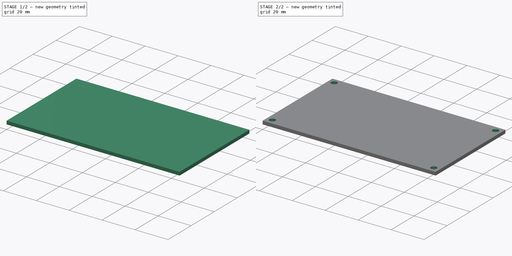
[diagram: build sequence overview — one tinted view per stage of 2, left to right]
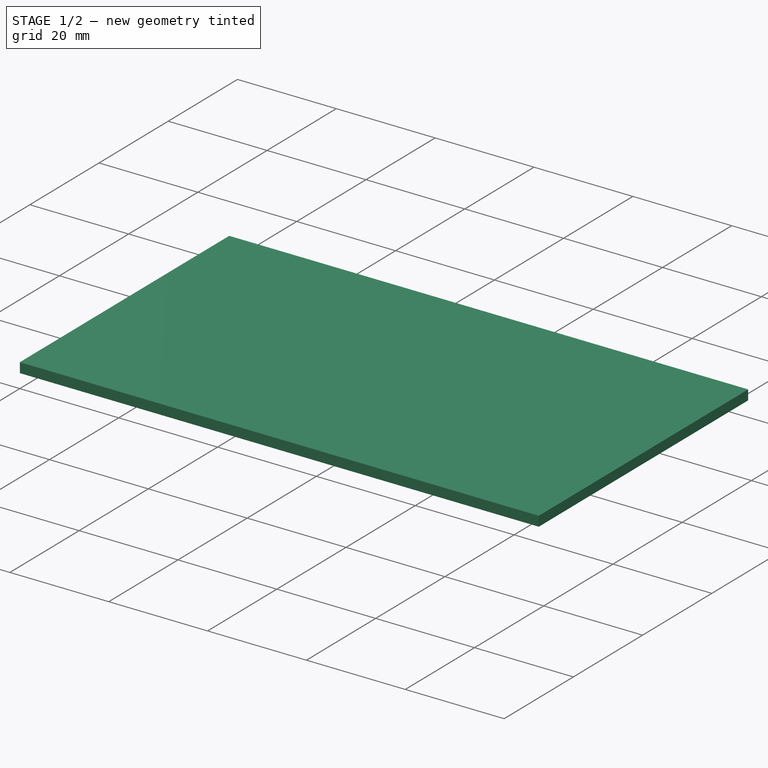
[diagram: stage 1 of 2 — iso view after this stage's code; geometry added in this stage tinted green]
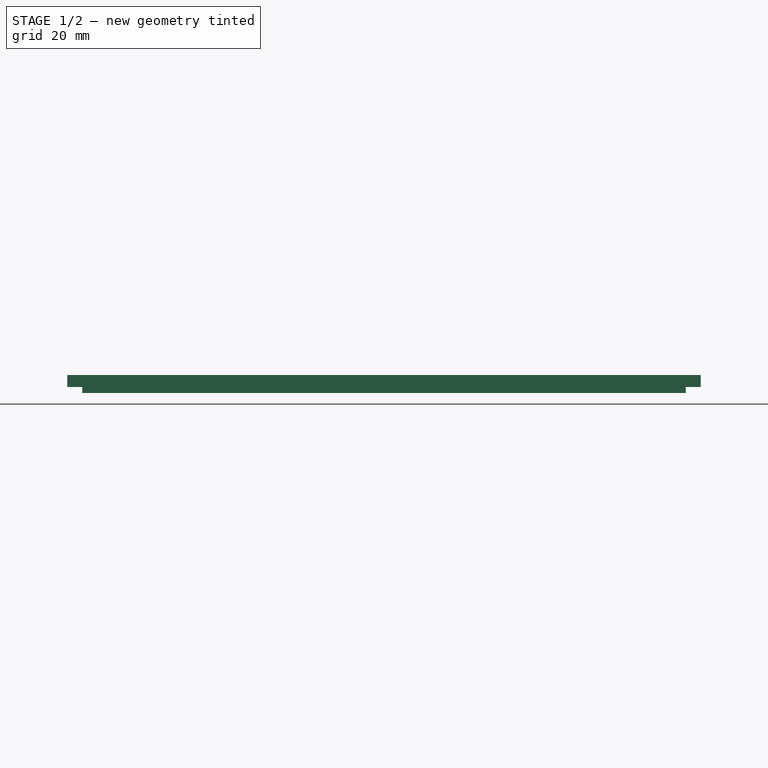
[diagram: stage 1 of 2 — front view after this stage's code; geometry added in this stage tinted green]
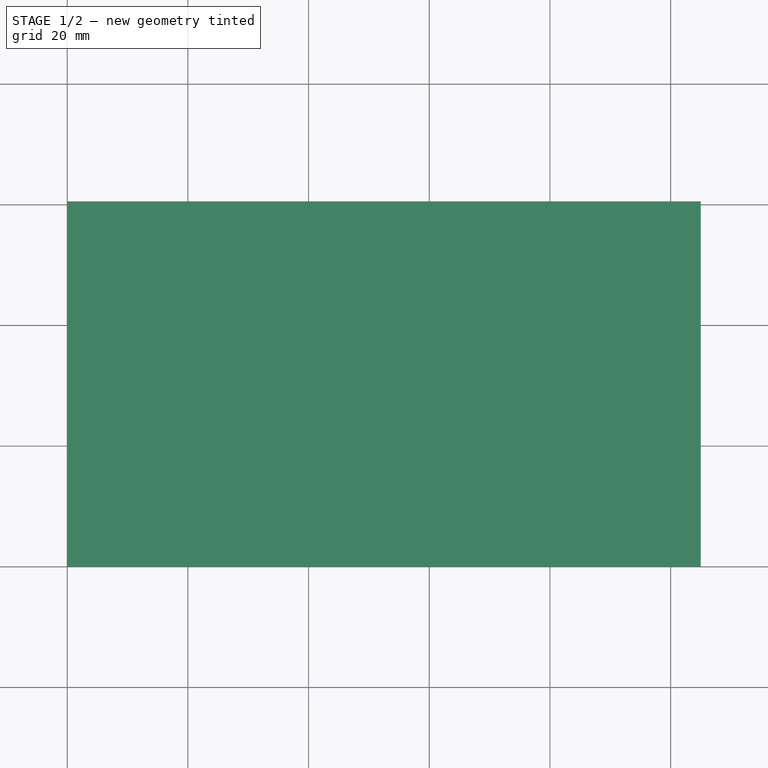
[diagram: stage 1 of 2 — top view after this stage's code; geometry added in this stage tinted green]
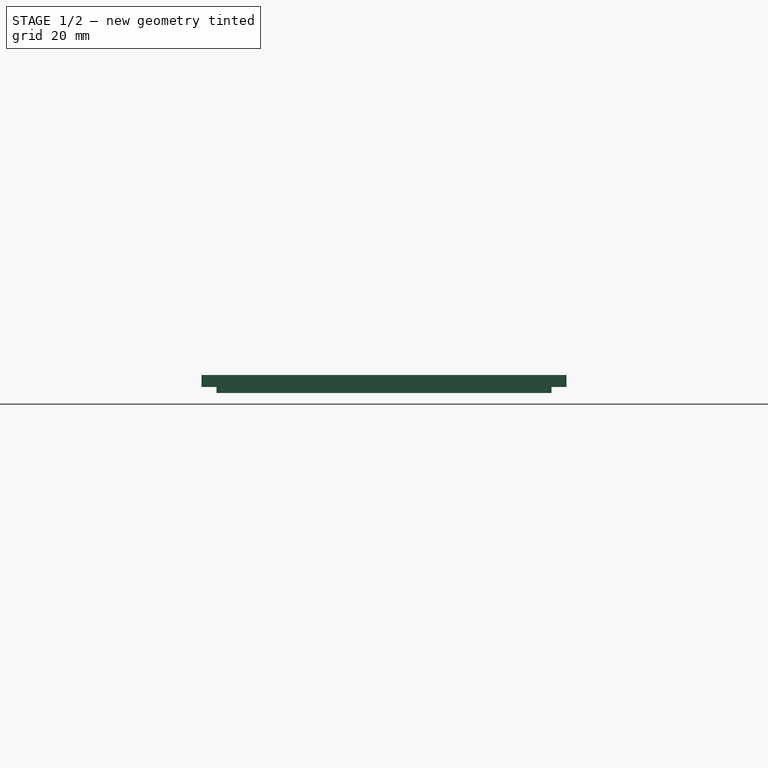
[diagram: stage 1 of 2 — right view after this stage's code; geometry added in this stage tinted green]
FCSTD DOCUMENT
Label: levelingglass_case_prototype_lid
License: CC-BY 3.0
LicenseURL: http://creativecommons.org/licenses/by/3.0/
objects: Sketcher::SketchObject×4, PartDesign::Pad×2, PartDesign::Pocket×2
note: 12 computed .brp shape members not serialized (recipe doc carries the construction recipe); baked Part::Feature solids carry a one-line shape summary decoded from their .brp

FEATURE [Sketcher::SketchObject] Sketch
  sketch-geometry (4):
    g0: LineSegment StartX=0 StartY=60.5 StartZ=0 EndX=105 EndY=60.5 EndZ=0
    g1: LineSegment StartX=105 StartY=60.5 StartZ=0 EndX=105 EndY=0 EndZ=0
    g2: LineSegment StartX=105 StartY=0 StartZ=0 EndX=0 EndY=0 EndZ=0
    g3: LineSegment StartX=0 StartY=0 StartZ=0 EndX=0 EndY=60.5 EndZ=0
  constraints (11):
    c: Coincident(g0,g1)
    c: Coincident(g1,g2)
    c: Coincident(g2,g3)
    c: Coincident(g3,g0)
    c: Horizontal(g0)
    c: Horizontal(g2)
    c: Vertical(g1)
    c: Vertical(g3)
    c: DistanceX(g0) = 105
    c: DistanceY(g3) = 60.5
    c: Coincident(g2,g-1)
FEATURE [PartDesign::Pad] Pad  label="Lid Top"
  Length = 2
  Length2 = 100
  Sketch = -> Sketch
  Type = 0
FEATURE [Sketcher::SketchObject] Sketch001
  ExternalGeometry = -> [Pad]
  Placement = pos=(0,0,0) rot=(1,0,0;3.14159rad)
  Support = -> Pad [Face5]
  sketch-geometry (4):
    g0: LineSegment StartX=2.5 StartY=-2.5 StartZ=0 EndX=102.5 EndY=-2.5 EndZ=0
    g1: LineSegment StartX=102.5 StartY=-2.5 StartZ=0 EndX=102.5 EndY=-58 EndZ=0
    g2: LineSegment StartX=102.5 StartY=-58 StartZ=0 EndX=2.5 EndY=-58 EndZ=0
    g3: LineSegment StartX=2.5 StartY=-58 StartZ=0 EndX=2.5 EndY=-2.5 EndZ=0
  constraints (12):
    c: Coincident(g0,g1)
    c: Coincident(g1,g2)
    c: Coincident(g2,g3)
    c: Coincident(g3,g0)
    c: Horizontal(g0)
    c: Horizontal(g2)
    c: Vertical(g1)
    c: Vertical(g3)
    c: DistanceY(g-1,g0) = -2.5
    c: DistanceX(g-2,g0) = 2.5
    c: Distance(g1,g-4) = 2.5
    c: Distance(g1,g-3) = 2.5
FEATURE [PartDesign::Pad] Pad001  label="Lid Bottom"
  Length = 1
  Length2 = 100
  Sketch = -> Sketch001
  Type = 0
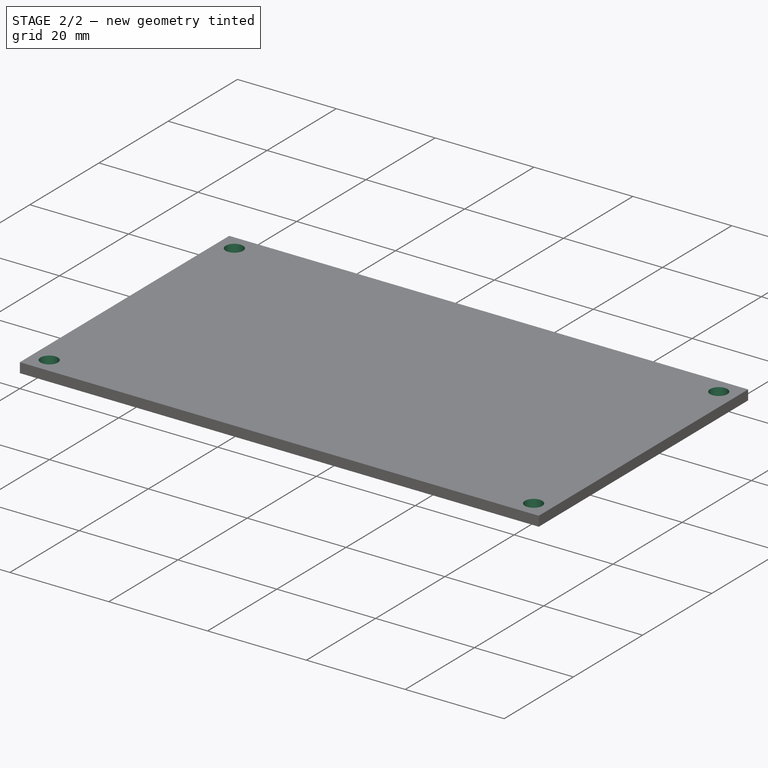
[diagram: stage 2 of 2 — iso view after this stage's code; geometry added in this stage tinted green]
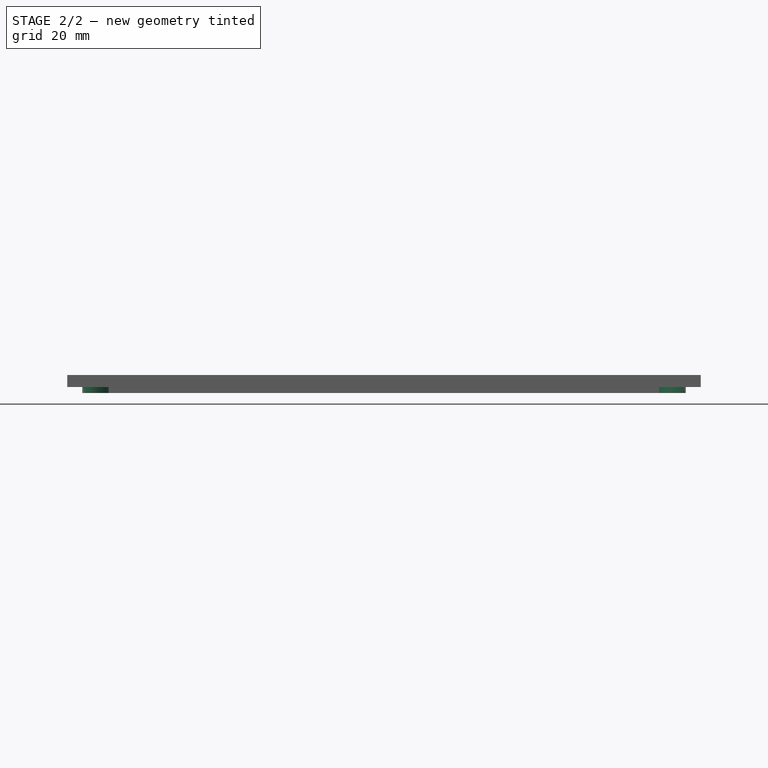
[diagram: stage 2 of 2 — front view after this stage's code; geometry added in this stage tinted green]
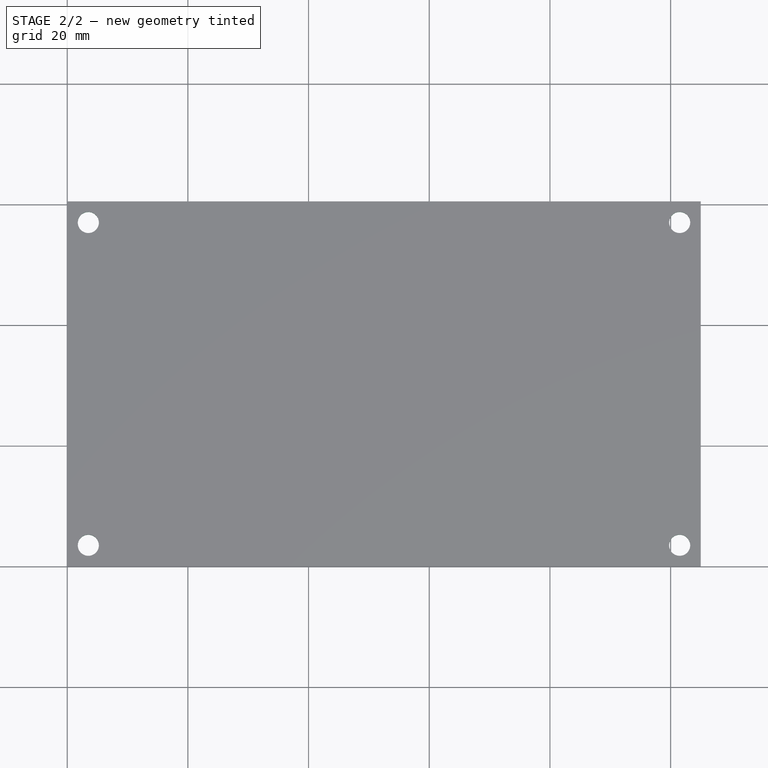
[diagram: stage 2 of 2 — top view after this stage's code; geometry added in this stage tinted green]
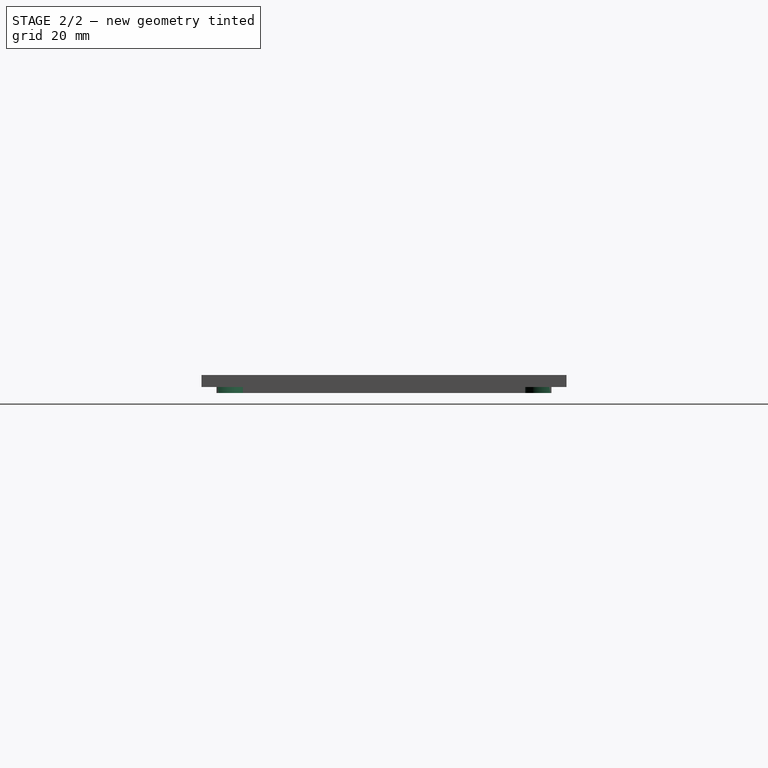
[diagram: stage 2 of 2 — right view after this stage's code; geometry added in this stage tinted green]
FEATURE [Sketcher::SketchObject] Sketch002
  ExternalGeometry = -> [Pad001]
  Placement = pos=(0,0,-1) rot=(1,0,0;3.14159rad)
  Support = -> Pad001 [Face11]
  sketch-geometry (12):
    g0: LineSegment [constr] StartX=2 StartY=-2 StartZ=0 EndX=103 EndY=-2 EndZ=0
    g1: LineSegment [constr] StartX=103 StartY=-2 StartZ=0 EndX=103 EndY=-58.5 EndZ=0
    g2: LineSegment [constr] StartX=103 StartY=-58.5 StartZ=0 EndX=2 EndY=-58.5 EndZ=0
    g3: LineSegment [constr] StartX=2 StartY=-58.5 StartZ=0 EndX=2 EndY=-2 EndZ=0
    g4: Circle [constr] CenterX=101.5 CenterY=-3.5 CenterZ=0 NormalX=0 NormalY=0 NormalZ=1 Radius=1.5
    g5: Circle [constr] CenterX=3.5 CenterY=-57 CenterZ=0 NormalX=0 NormalY=0 NormalZ=1 Radius=1.5
    g6: Circle [constr] CenterX=101.5 CenterY=-57 CenterZ=0 NormalX=0 NormalY=0 NormalZ=1 Radius=1.5
    g7: Circle [constr] CenterX=3.5 CenterY=-3.5 CenterZ=0 NormalX=0 NormalY=0 NormalZ=1 Radius=1.5
    g8: Circle CenterX=3.5 CenterY=-3.5 CenterZ=0 NormalX=0 NormalY=0 NormalZ=1 Radius=3.5
    g9: Circle CenterX=3.5 CenterY=-57 CenterZ=0 NormalX=0 NormalY=0 NormalZ=1 Radius=3.5
    g10: Circle CenterX=101.5 CenterY=-3.5 CenterZ=0 NormalX=0 NormalY=0 NormalZ=1 Radius=3.5
    g11: Circle CenterX=101.5 CenterY=-57 CenterZ=0 NormalX=0 NormalY=0 NormalZ=1 Radius=3.5
  constraints (32):
    c: Coincident(g0,g1)
    c: Coincident(g1,g2)
    c: Coincident(g2,g3)
    c: Coincident(g3,g0)
    c: Horizontal(g0)
    c: Horizontal(g2)
    c: Vertical(g1)
    c: Vertical(g3)
    c: DistanceX(g-2,g0) = 2
    c: DistanceY(g-1,g0) = -2
    c: Distance(g1,g-4) = 2
    c: Distance(g1,g-3) = 2
    c: Equal(g7,g4)
    c: Equal(g4,g5)
    c: Equal(g5,g6)
    c: Radius(g7) = 1.5
    c: Tangent(g3,g7)
    c: Tangent(g7,g0)
    c: Equal(g11,g10)
    c: Equal(g10,g9)
    c: Equal(g9,g8)
    c: Radius(g8) = 3.5
    c: Coincident(g8,g7)
    c: Coincident(g10,g4)
    c: Coincident(g9,g5)
    c: Tangent(g6,g2)
    c: Tangent(g6,g1)
    c: Coincident(g11,g6)
    c: Tangent(g5,g2)
    c: Tangent(g5,g3)
    c: Tangent(g4,g0)
    c: Tangent(g4,g1)
FEATURE [PartDesign::Pocket] Pocket
  Length = 1
  Sketch = -> Sketch002
  Type = 0
FEATURE [Sketcher::SketchObject] Sketch003
  ExternalGeometry = -> [Pocket]
  Placement = pos=(0,0,2) rot=(0,0,1;0rad)
  Support = -> Pocket [Face1]
  sketch-geometry (12):
    g0: LineSegment [constr] StartX=2 StartY=58.5 StartZ=0 EndX=103 EndY=58.5 EndZ=0
    g1: LineSegment [constr] StartX=103 StartY=58.5 StartZ=0 EndX=103 EndY=2 EndZ=0
    g2: LineSegment [constr] StartX=103 StartY=2 StartZ=0 EndX=2 EndY=2 EndZ=0
    g3: LineSegment [constr] StartX=2 StartY=2 StartZ=0 EndX=2 EndY=58.5 EndZ=0
    g4: Circle CenterX=3.5 CenterY=57 CenterZ=0 NormalX=0 NormalY=0 NormalZ=1 Radius=1.75
    g5: Circle CenterX=101.5 CenterY=57 CenterZ=0 NormalX=0 NormalY=0 NormalZ=1 Radius=1.75
    g6: Circle CenterX=3.5 CenterY=3.5 CenterZ=0 NormalX=0 NormalY=0 NormalZ=1 Radius=1.75
    g7: Circle CenterX=101.5 CenterY=3.5 CenterZ=0 NormalX=0 NormalY=0 NormalZ=1 Radius=1.75
    g8: Circle [constr] CenterX=3.5 CenterY=3.5 CenterZ=0 NormalX=0 NormalY=0 NormalZ=1 Radius=1.5
    g9: Circle [constr] CenterX=3.5 CenterY=57 CenterZ=0 NormalX=0 NormalY=0 NormalZ=1 Radius=1.5
    g10: Circle [constr] CenterX=101.5 CenterY=57 CenterZ=0 NormalX=0 NormalY=0 NormalZ=1 Radius=1.5
    g11: Circle [constr] CenterX=101.5 CenterY=3.5 CenterZ=0 NormalX=0 NormalY=0 NormalZ=1 Radius=1.5
  constraints (32):
    c: Coincident(g0,g1)
    c: Coincident(g1,g2)
    c: Coincident(g2,g3)
    c: Coincident(g3,g0)
    c: Horizontal(g0)
    c: Horizontal(g2)
    c: Vertical(g1)
    c: Vertical(g3)
    c: Distance(g0,g-5) = 2
    c: Distance(g0,g-6) = 2
    c: Distance(g1,g-4) = 2
    c: Distance(g1,g-3) = 2
    c: Equal(g4,g5)
    c: Equal(g5,g7)
    c: Equal(g7,g6)
    c: Radius(g4) = 1.75
    c: Equal(g9,g8)
    c: Equal(g8,g11)
    c: Equal(g11,g10)
    c: Radius(g9) = 1.5
    c: Tangent(g9,g0)
    c: Tangent(g9,g3)
    c: Coincident(g4,g9)
    c: Tangent(g10,g0)
    c: Tangent(g10,g1)
    c: Coincident(g5,g10)
    c: Tangent(g8,g2)
    c: Tangent(g8,g3)
    c: Coincident(g6,g8)
    c: Tangent(g11,g1)
    c: Tangent(g11,g2)
    c: Coincident(g7,g11)
FEATURE [PartDesign::Pocket] Pocket001  label="Lid Holes"
  Length = 5
  Sketch = -> Sketch003
  Type = 1
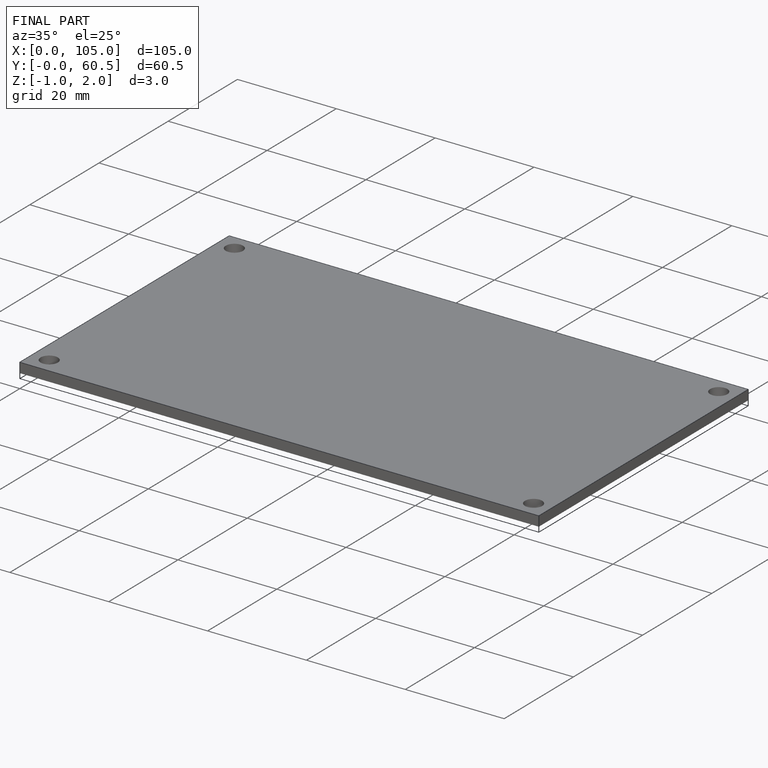
[diagram: finished part — iso view with bounding-box wireframe]
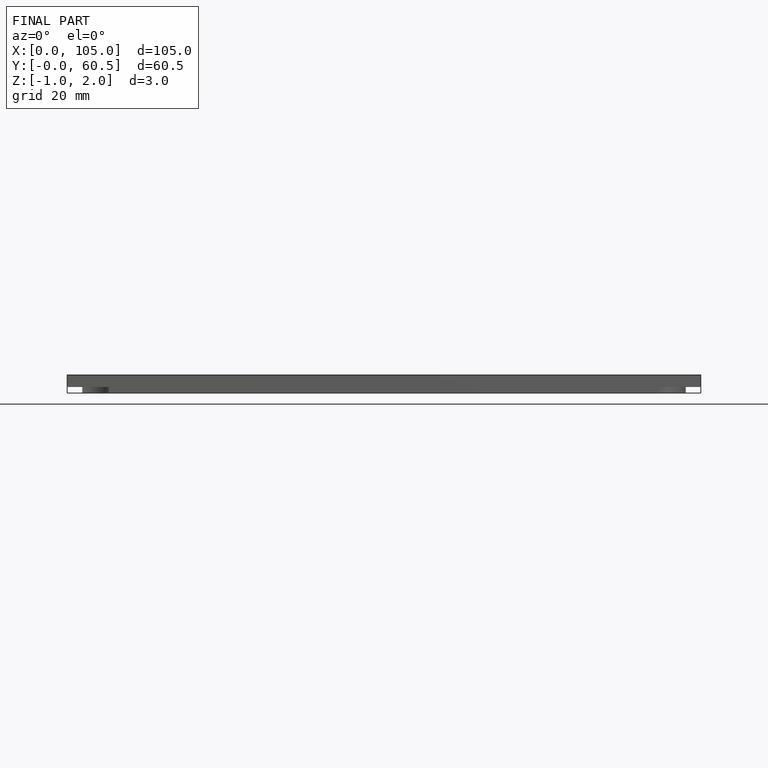
[diagram: finished part — front view with bounding-box wireframe]
